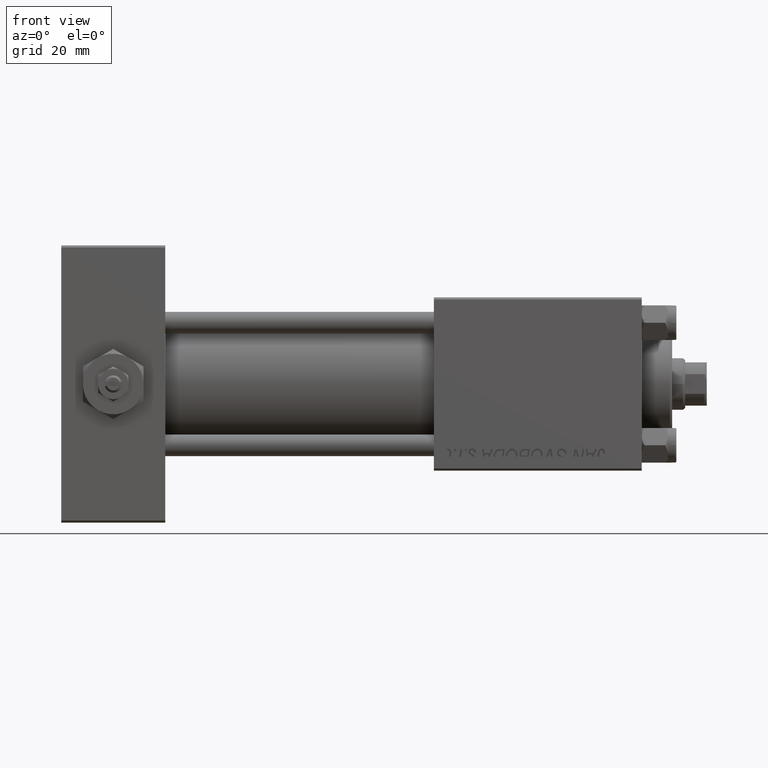
[diagram: clean part render]
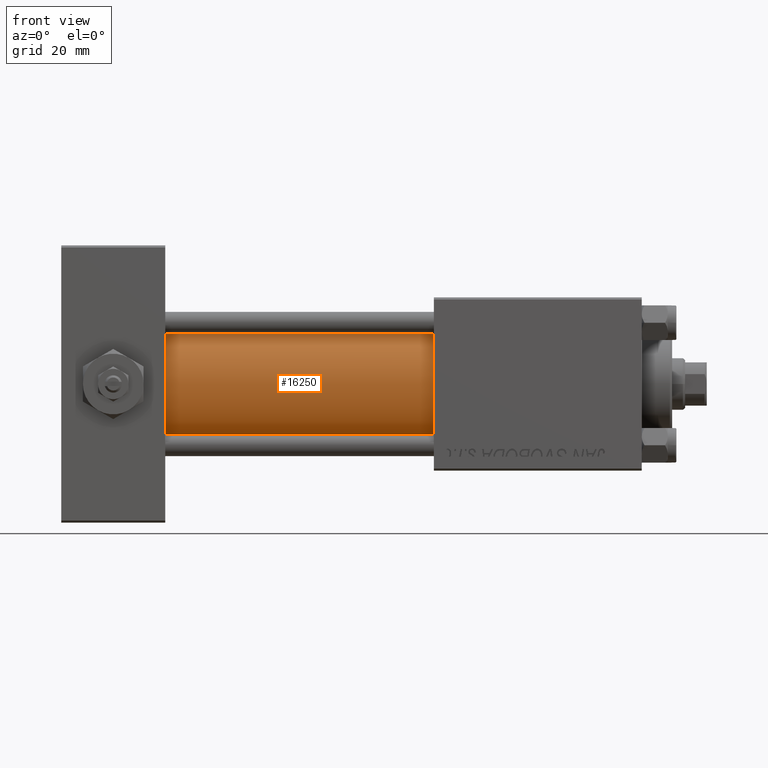
[diagram: same view with one face highlighted and labeled with its STEP entity id]
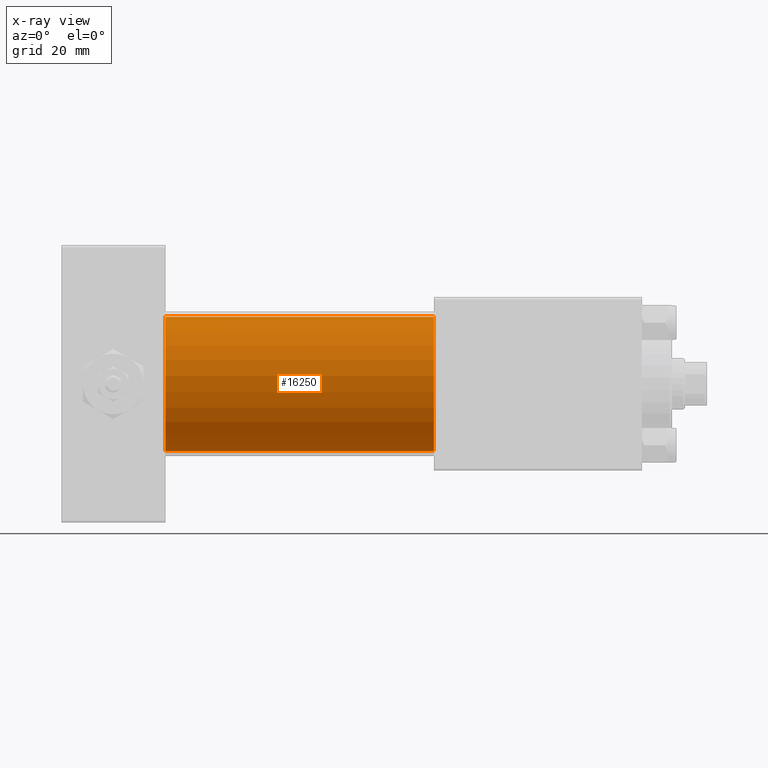
[diagram: x-ray of the same camera — body ghosted, the highlighted face saturated]
A machine part, front view. The second image highlights one B-rep face of the part: STEP entity #16250.
The next image is the same camera in x-ray: the body ghosted, the highlighted face saturated — about 0% of this face is hidden behind the body in this view.
In plain terms, the highlighted cylindrical surface (partial cylindrical patch) has radius 15.5 mm, axis along (-1, -0, -0).
Its self-contained STEP definition (entity closure, byte-faithful):
#142 = AXIS2_PLACEMENT_3D ( 'NONE', #16640, #39863, #13003 ) ;
#3069 = ORIENTED_EDGE ( 'NONE', *, *, #21311, .T. ) ;
#3172 = CARTESIAN_POINT ( 'NONE',  ( 24.00000000000000000, -2.602085213965210642E-15, 15.50000000000000000 ) ) ;
#3583 = DIRECTION ( 'NONE',  ( -1.000000000000000000, -0.000000000000000000, -0.000000000000000000 ) ) ;
#6774 = VECTOR ( 'NONE', #25565, 1000.000000000000000 ) ;
#7575 = ORIENTED_EDGE ( 'NONE', *, *, #20400, .F. ) ;
#7591 = VECTOR ( 'NONE', #36305, 1000.000000000000000 ) ;
#8803 = ORIENTED_EDGE ( 'NONE', *, *, #21528, .T. ) ;
#10672 = DIRECTION ( 'NONE',  ( 0.000000000000000000, 0.000000000000000000, -1.000000000000000000 ) ) ;
#13003 = DIRECTION ( 'NONE',  ( 0.000000000000000000, 0.000000000000000000, 1.000000000000000000 ) ) ;
#14811 = ORIENTED_EDGE ( 'NONE', *, *, #48770, .F. ) ;
#16250 = ADVANCED_FACE ( 'NONE', ( #43237 ), #42731, .T. ) ;
#16640 = CARTESIAN_POINT ( 'NONE',  ( 24.00000000000000000, -2.602085213965210642E-15, 0.000000000000000000 ) ) ;
#17732 = CARTESIAN_POINT ( 'NONE',  ( 86.00000000000000000, -2.602085213965210642E-15, 15.50000000000000000 ) ) ;
#18864 = VERTEX_POINT ( 'NONE', #32497 ) ;
#19277 = CIRCLE ( 'NONE', #142, 15.50000000000000000 ) ;
#20400 = EDGE_CURVE ( 'NONE', #41845, #45896, #40475, .T. ) ;
#20606 = EDGE_LOOP ( 'NONE', ( #7575, #14811, #3069, #8803 ) ) ;
#20971 = AXIS2_PLACEMENT_3D ( 'NONE', #34929, #46437, #10672 ) ;
#21311 = EDGE_CURVE ( 'NONE', #18864, #30863, #42250, .T. ) ;
#21528 = EDGE_CURVE ( 'NONE', #30863, #45896, #19277, .T. ) ;
#25565 = DIRECTION ( 'NONE',  ( -1.000000000000000000, -0.000000000000000000, -0.000000000000000000 ) ) ;
#30717 = DIRECTION ( 'NONE',  ( 0.000000000000000000, 0.000000000000000000, 1.000000000000000000 ) ) ;
#30863 = VERTEX_POINT ( 'NONE', #3172 ) ;
#32497 = CARTESIAN_POINT ( 'NONE',  ( 86.00000000000000000, -2.602085213965210642E-15, 15.50000000000000000 ) ) ;
#33436 = CIRCLE ( 'NONE', #20971, 15.50000000000000000 ) ;
#34612 = CARTESIAN_POINT ( 'NONE',  ( 24.00000000000000000, -7.038826752868131828E-16, -15.50000000000000000 ) ) ;
#34929 = CARTESIAN_POINT ( 'NONE',  ( 86.00000000000000000, -2.602085213965210642E-15, 0.000000000000000000 ) ) ;
#36305 = DIRECTION ( 'NONE',  ( -1.000000000000000000, -0.000000000000000000, -0.000000000000000000 ) ) ;
#39813 = CARTESIAN_POINT ( 'NONE',  ( 86.00000000000000000, -7.038826752868131828E-16, -15.50000000000000000 ) ) ;
#39863 = DIRECTION ( 'NONE',  ( 1.000000000000000000, 0.000000000000000000, 0.000000000000000000 ) ) ;
#39958 = CARTESIAN_POINT ( 'NONE',  ( 86.00000000000000000, -7.038826752868131828E-16, -15.50000000000000000 ) ) ;
#40475 = LINE ( 'NONE', #39958, #7591 ) ;
#41845 = VERTEX_POINT ( 'NONE', #39813 ) ;
#42250 = LINE ( 'NONE', #17732, #6774 ) ;
#42731 = CYLINDRICAL_SURFACE ( 'NONE', #48604, 15.50000000000000000 ) ;
#43237 = FACE_OUTER_BOUND ( 'NONE', #20606, .T. ) ;
#45896 = VERTEX_POINT ( 'NONE', #34612 ) ;
#46437 = DIRECTION ( 'NONE',  ( 1.000000000000000000, 0.000000000000000000, 0.000000000000000000 ) ) ;
#47166 = CARTESIAN_POINT ( 'NONE',  ( 86.00000000000000000, -2.602085213965210642E-15, 0.000000000000000000 ) ) ;
#48604 = AXIS2_PLACEMENT_3D ( 'NONE', #47166, #3583, #30717 ) ;
#48770 = EDGE_CURVE ( 'NONE', #18864, #41845, #33436, .T. ) ;